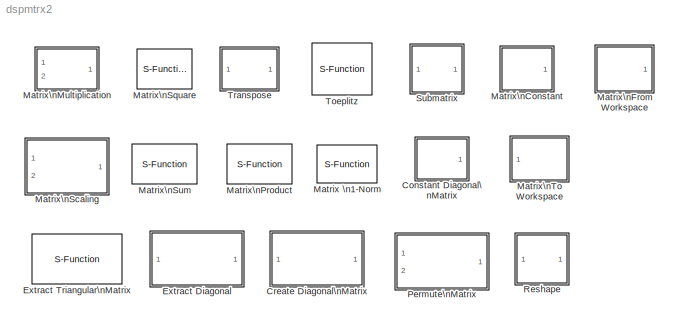
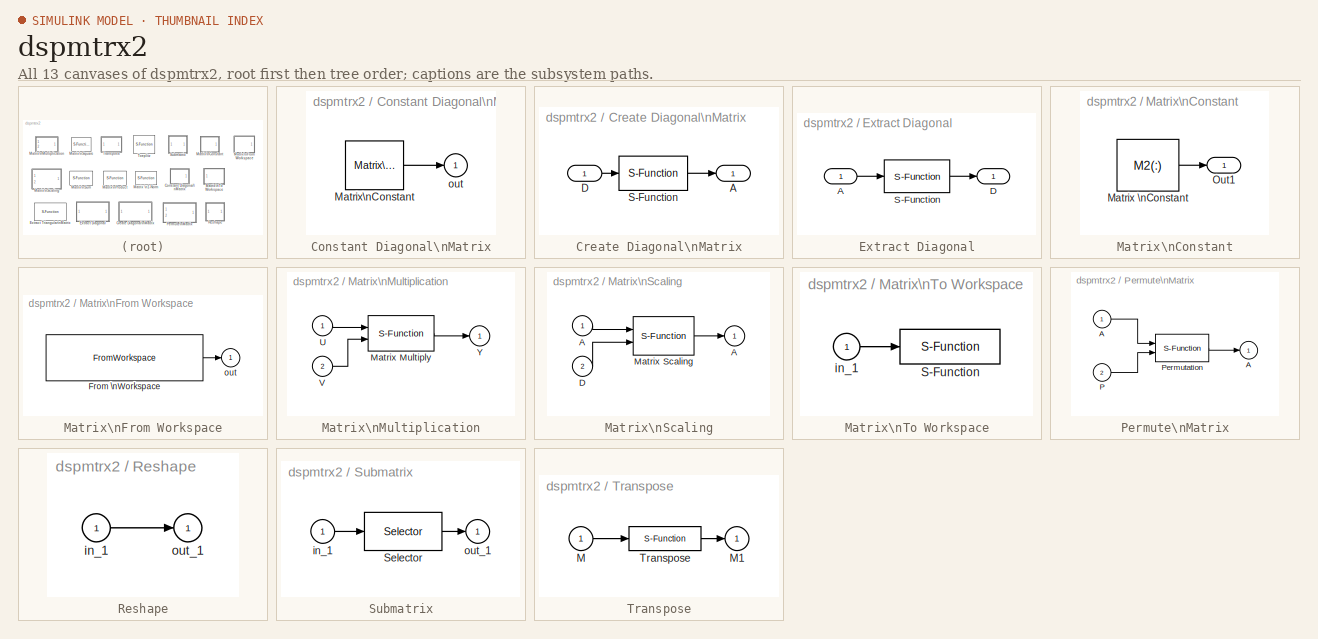
[diagram: thumbnail index - all 13 canvases of the model, root first then tree order]
MODEL dspmtrx2
KIND library
BLOCK [SubSystem] Constant Diagonal\nMatrix
  MaskCallbackString = |
  MaskDescription = Generate a full, diagonal matrix having elements specified by a vector\nconstant.  For a scalar constant, all diagonal elements will be identical.  To generate a diagonal scaling vector, use a constant block.\n
  MaskDisplay = plot(x,y)
  MaskEnableString = on,on
  MaskHelp = web(dspbhelp);
  MaskIconFrame = on
  MaskIconOpaque = on
  MaskIconRotate = none
  MaskIconUnits = autoscale
  MaskInitialization = [a,x,y] = dspblkdiag(n,q);
  MaskPromptString = Number of rows in matrix:|Constant(s) along diagonal:
  MaskStyleString = edit,edit
  MaskTunableValueString = off,on
  MaskType = Constant Diagonal Matrix
  MaskValueString = 3|1
  MaskVariables = n=@1;q=@2;
  MaskVisibilityString = on,on
  Ports = [0, 1, 0, 0, 0]
  ShowPortLabels = off
BLOCK [Reference] Constant Diagonal\nMatrix/Matrix\nConstant  REF=dspmtrx2/Matrix\nConstant
  M = a
  Ports = [0, 1, 0, 0, 0]
  SourceBlock = dspmtrx2/Matrix\nConstant
  SourceType = Matrix Constant
BLOCK [Outport] Constant Diagonal\nMatrix/out
  InitialOutput = 0
  OutputWhenDisabled = held
  Port = 1
BLOCK [SubSystem] Create Diagonal\nMatrix
  MaskDescription = Convert a vector of diagonal elements to a full matrix.
  MaskDisplay = plot(x,y)
  MaskHelp = web(dspbhelp);
  MaskIconFrame = on
  MaskIconOpaque = off
  MaskIconRotate = none
  MaskIconUnits = normalized
  MaskInitialization = ncols = -1;\nmode = 1;\nx = [.58 .87 .87 .58 .58 NaN 0.45 0.12 NaN 0.525 0.525 0.475 0.475 0.525 0.525 0.565 0.525 ];\ny = [ 0.2 0.2 0.8 0.8 0.2 NaN 0.2 0.8 NaN 0.435 0.475 0.475 0.525 0.525 0.565 0.5 0.435 ];
  MaskType = Create Diagonal Matrix
  Ports = [1, 1, 0, 0, 0]
  ShowPortLabels = on
BLOCK [Outport] Create Diagonal\nMatrix/A
  InitialOutput = []
  OutputWhenDisabled = held
  Port = 1
BLOCK [Inport] Create Diagonal\nMatrix/D
  DataType = auto
  Interpolate = on
  Port = 1
  PortWidth = -1
  SampleTime = -1
  SignalType = auto
BLOCK [S-Function] Create Diagonal\nMatrix/S-Function
  FunctionName = sdspdiag
  Parameters = ncols,mode
  PortCounts = []
  Ports = [1, 1, 0, 0, 0]
  SFunctionModules = ''
BLOCK [SubSystem] Extract Diagonal
  MaskDescription = Extract the main diagonal of a full matrix.
  MaskDisplay = plot(x,y)
  MaskEnableString = on
  MaskHelp = web(dspbhelp);
  MaskIconFrame = on
  MaskIconOpaque = off
  MaskIconRotate = none
  MaskIconUnits = normalized
  MaskInitialization = mode = 2;\nx = [.58 .87 NaN 0.12 0.45 0.45 0.12 0.12 NaN 0.525 0.525 0.475 0.475 0.525 0.525 0.565 0.525 ];\ny = [ 0.8 0.2 NaN 0.2 0.2 0.8 0.8 0.2 NaN 0.435 0.475 0.475 0.525 0.525 0.565 0.5 0.435 ];
  MaskPromptString = Number of columns in A (-1 for square):
  MaskStyleString = edit
  MaskTunableValueString = off
  MaskType = Extract Diagonal
  MaskValueString = -1
  MaskVariables = ncols=@1;
  MaskVisibilityString = on
  Ports = [1, 1, 0, 0, 0]
  ShowPortLabels = on
BLOCK [Inport] Extract Diagonal/A
  DataType = auto
  Interpolate = on
  Port = 1
  PortWidth = -1
  SampleTime = -1
  SignalType = auto
BLOCK [Outport] Extract Diagonal/D
  InitialOutput = []
  OutputWhenDisabled = held
  Port = 1
BLOCK [S-Function] Extract Diagonal/S-Function
  FunctionName = sdspdiag
  Parameters = ncols,mode
  PortCounts = []
  Ports = [1, 1, 0, 0, 0]
  SFunctionModules = ''
BLOCK [S-Function] Extract Triangular\nMatrix
  FunctionName = sdsptri
  MaskCallbackString = |
  MaskDescription = Extract upper or lower triangular part of input matrix.
  MaskDisplay = plot(x,y);\nport_label('input',1,'A');\nport_label('output',1,s);\n
  MaskEnableString = on,on
  MaskHelp = web(dspbhelp);
  MaskIconFrame = on
  MaskIconOpaque = on
  MaskIconRotate = none
  MaskIconUnits = normalized
  MaskInitialization = [s,x,y] = dspblktri(fcn);
  MaskPromptString = Extract:|Number of columns in A:
  MaskStyleString = popup(Upper|Lower),edit
  MaskTunableValueString = on,off
  MaskType = Extract Triangular Matrix
  MaskValueString = Upper|5
  MaskVariables = fcn=@1;ncols=@2;
  MaskVisibilityString = on,on
  Parameters = ncols,fcn
  PortCounts = []
  Ports = [1, 1, 0, 0, 0]
  SFunctionModules = ''
BLOCK [S-Function] Matrix \n1-Norm
  FunctionName = sdspm1norm
  MaskDescription = Compute the matrix 1-norm, which is the largest column sum of absolute values.
  MaskDisplay = disp('Matrix\\n1-Norm')
  MaskEnableString = on
  MaskHelp = web(dspbhelp);
  MaskIconFrame = on
  MaskIconOpaque = on
  MaskIconRotate = none
  MaskIconUnits = autoscale
  MaskPromptString = Number of columns in input (-1 for square):
  MaskStyleString = edit
  MaskTunableValueString = on
  MaskType = Matrix 1-Norm
  MaskValueString = -1
  MaskVariables = Cols=@1;
  MaskVisibilityString = on
  Parameters = Cols
  PortCounts = []
  Ports = [1, 1, 0, 0, 0]
  SFunctionModules = ''
BLOCK [SubSystem] Matrix\nConstant
  MaskDescription = Generate a constant matrix.
  MaskDisplay = plot(0,0,100,100,\n[20 10 10 20],[90 90 10 10],[84 96 96 84],[90 90 10 10]);\ndisp(s);\n
  MaskEnableString = on
  MaskHelp = web(dspbhelp);
  MaskIconFrame = on
  MaskIconOpaque = on
  MaskIconRotate = none
  MaskIconUnits = autoscale
  MaskInitialization = M2=M; s=size(M2);\nif length(s)>2,\n  s2=prod(s(2:end));\n  M2=reshape(M2,s(1),s2);\n  s=[s(1) s2];\nend\ns=sprintf('%dx%d',s(1),s(2));\n
  MaskPromptString = Matrix:
  MaskStyleString = edit
  MaskTunableValueString = on
  MaskType = Matrix Constant
  MaskValueString = rand(3,3)
  MaskVariables = M=@1;
  MaskVisibilityString = on
  Ports = [0, 1, 0, 0, 0]
  ShowPortLabels = on
BLOCK [Constant] Matrix\nConstant/Matrix \nConstant
  Value = M2(:)
BLOCK [Outport] Matrix\nConstant/Out1
  InitialOutput = 0
  OutputWhenDisabled = held
  Port = 1
BLOCK [SubSystem] Matrix\nFrom Workspace
  MaskCallbackString = |
  MaskDescription = Interpolate workspace array of time and matrix input values.
  MaskDisplay = plot(0,0,100,100,\n[20 10 10 20],[90 90 10 10],[84 96 96 84],[90 90 10 10]);\ndisp(dispstr);
  MaskEnableString = on,on
  MaskHelp = web(dspbhelp);
  MaskIconFrame = on
  MaskIconOpaque = on
  MaskIconRotate = none
  MaskIconUnits = autoscale
  MaskInitialization = [M,N,P]=size(U);\ndispstr=sprintf('%dx%dx%d',M,N,P);\ns.time=[]; s.signals.values=reshape(U,M*N,P).';\n
  MaskPromptString = 3-D array (3rd dim spans time):|Sample Time
  MaskStyleString = edit,edit
  MaskTunableValueString = off,off
  MaskType = Matrix From Workspace
  MaskValueString = rand(3,3,5)|1
  MaskVariables = U=@1;Ts=@2;
  MaskVisibilityString = on,on
  Ports = [0, 1, 0, 0, 0]
  ShowPortLabels = on
BLOCK [FromWorkspace] Matrix\nFrom Workspace/From \nWorkspace
  HoldFinalValue = off
  Interpolate = off
  SampleTime = Ts
  VariableName = s
BLOCK [Outport] Matrix\nFrom Workspace/out
  InitialOutput = 0
  OutputWhenDisabled = held
  Port = 1
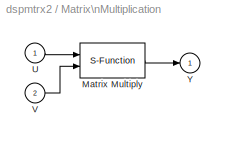
BLOCK [SubSystem] Matrix\nMultiplication
  MaskCallbackString = |
  MaskDescription = Multiply two matrices.
  MaskDisplay = disp(' U * V')
  MaskEnableString = on,on
  MaskHelp = web(dspbhelp);
  MaskIconFrame = on
  MaskIconOpaque = off
  MaskIconRotate = none
  MaskIconUnits = autoscale
  MaskPromptString = Size of U, [rows cols]:|Number of columns in V:
  MaskStyleString = edit,edit
  MaskTunableValueString = off,off
  MaskType = Matrix Multiplication
  MaskValueString = [2 2]|2
  MaskVariables = Asize=@1;Bcols=@2;
  MaskVisibilityString = on,on
  Ports = [2, 1, 0, 0, 0]
  ShowPortLabels = on
BLOCK [S-Function] Matrix\nMultiplication/Matrix Multiply
  FunctionName = sdspmmult
  Parameters = Asize,Bcols
  PortCounts = []
  Ports = [2, 1, 0, 0, 0]
  SFunctionModules = ''
BLOCK [Inport] Matrix\nMultiplication/U
  DataType = auto
  Interpolate = on
  Port = 1
  PortWidth = -1
  SampleTime = -1
  SignalType = auto
BLOCK [Inport] Matrix\nMultiplication/V
  DataType = auto
  Interpolate = on
  Port = 2
  PortWidth = -1
  SampleTime = -1
  SignalType = auto
BLOCK [Outport] Matrix\nMultiplication/Y
  InitialOutput = 0
  OutputWhenDisabled = held
  Port = 1
BLOCK [S-Function] Matrix\nProduct
  FunctionName = sdspmprod
  MaskCallbackString = |
  MaskDescription = Product of matrix elements along the row or column dimension.
  MaskDisplay = disp(str);
  MaskEnableString = on,on
  MaskHelp = web(dspbhelp);
  MaskIconFrame = on
  MaskIconOpaque = on
  MaskIconRotate = none
  MaskIconUnits = autoscale
  MaskInitialization = if (Dim==1), str='Row\\nProduct';\nelse str='Column\\nProduct';\nend\n
  MaskPromptString = Multiply along:|Number of columns in input:
  MaskStyleString = popup(Rows|Columns),edit
  MaskTunableValueString = off,off
  MaskType = Matrix Product
  MaskValueString = Columns|3
  MaskVariables = Dim=@1;Cols=@2;
  MaskVisibilityString = on,on
  Parameters = Cols,Dim
  PortCounts = []
  Ports = [1, 1, 0, 0, 0]
  SFunctionModules = ''
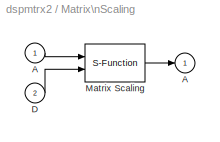
BLOCK [SubSystem] Matrix\nScaling
  MaskCallbackString = |
  MaskDescription = Scale the columns or rows of a matrix A by the elements of a vector D.  This is equivalent to multiplying a full matrix (A) by a diagonal (D), and vice-versa.
  MaskDisplay = disp(s);
  MaskEnableString = on,on
  MaskHelp = web(dspbhelp);
  MaskIconFrame = on
  MaskIconOpaque = off
  MaskIconRotate = none
  MaskIconUnits = normalized
  MaskInitialization = if mode==1, s='Scale\\nRows'; else s='Scale\\nColumns'; end
  MaskPromptString = Mode:|Number of columns in A:
  MaskStyleString = popup(Scale Rows (D*A)|Scale Columns (A*D)),edit
  MaskTunableValueString = on,on
  MaskType = Matrix Scaling
  MaskValueString = Scale Rows (D*A)|1
  MaskVariables = mode=@1;cols=@2;
  MaskVisibilityString = on,on
  Ports = [2, 1, 0, 0, 0]
  ShowPortLabels = on
BLOCK [Outport] Matrix\nScaling/ A
  InitialOutput = 0
  OutputWhenDisabled = held
  Port = 1
BLOCK [Inport] Matrix\nScaling/A
  DataType = auto
  Interpolate = on
  Port = 1
  PortWidth = -1
  SampleTime = -1
  SignalType = auto
BLOCK [Inport] Matrix\nScaling/D
  DataType = auto
  Interpolate = on
  Port = 2
  PortWidth = -1
  SampleTime = -1
  SignalType = auto
BLOCK [S-Function] Matrix\nScaling/Matrix Scaling
  FunctionName = sdspdmult
  Parameters = mode,cols
  PortCounts = []
  Ports = [2, 1, 0, 0, 0]
  SFunctionModules = ''
BLOCK [S-Function] Matrix\nSquare
  FunctionName = sdspmsqr
  MaskDescription = Compute the matrix square, U' * U.  May be used with row and column input vectors to compute efficient outer and inner products.  Hermitian transpose is performed for complex inputs.
  MaskDisplay = disp('U'' * U')
  MaskEnableString = on
  MaskHelp = web(dspbhelp);
  MaskIconFrame = on
  MaskIconOpaque = on
  MaskIconRotate = none
  MaskIconUnits = autoscale
  MaskPromptString = Number of columns in input:
  MaskStyleString = edit
  MaskTunableValueString = off
  MaskType = Matrix Square
  MaskValueString = 3
  MaskVariables = Acols=@1;
  MaskVisibilityString = on
  Parameters = Acols
  PortCounts = []
  Ports = [1, 1, 0, 0, 0]
  SFunctionModules = ''
BLOCK [S-Function] Matrix\nSum
  FunctionName = sdspmsum
  MaskCallbackString = |
  MaskDescription = Sum of matrix elements along the row or column dimension.
  MaskDisplay = disp(str);
  MaskEnableString = on,on
  MaskHelp = web(dspbhelp);
  MaskIconFrame = on
  MaskIconOpaque = on
  MaskIconRotate = none
  MaskIconUnits = autoscale
  MaskInitialization = if (Dim==1), str='Row\\nSum';\nelse str='Column\\nSum';\nend\n
  MaskPromptString = Sum along:|Number of columns in input:
  MaskStyleString = popup(Rows|Columns),edit
  MaskTunableValueString = off,off
  MaskType = Matrix Sum
  MaskValueString = Columns|3
  MaskVariables = Dim=@1;Cols=@2;
  MaskVisibilityString = on,on
  Parameters = Cols,Dim
  PortCounts = []
  Ports = [1, 1, 0, 0, 0]
  SFunctionModules = ''
BLOCK [SubSystem] Matrix\nTo Workspace
  MaskCallbackString = |||
  MaskDescription = Write a matrix signal into the workspace, storing the resulting time-sequence as a 3-D array with time running along the third dimension.
  MaskDisplay = disp(matname)
  MaskEnableString = on,on,on,on
  MaskHelp = web(dspbhelp);
  MaskIconFrame = on
  MaskIconOpaque = on
  MaskIconRotate = none
  MaskIconUnits = autoscale
  MaskInitialization = \n
  MaskPromptString = Array name:|Maximum number of matrices:|Decimation factor:|Matrix size:
  MaskStyleString = edit,edit,edit,edit
  MaskTunableValueString = off,off,off,off
  MaskType = Matrix To Workspace
  MaskValueString = yout|1000|1|[3 3]
  MaskVariables = matname=&1;maxrows=@2;deci=@3;matsiz=@4;
  MaskVisibilityString = on,on,on,on
  Ports = [1, 0, 0, 0, 0]
  ShowPortLabels = on
BLOCK [S-Function] Matrix\nTo Workspace/S-Function
  FunctionName = sdspmtwks
  Parameters = matname,maxrows,deci,matsiz
  PortCounts = []
  Ports = [1, 0, 0, 0, 0]
  SFunctionModules = ''
BLOCK [Inport] Matrix\nTo Workspace/in_1
  DataType = auto
  Interpolate = on
  Port = 1
  PortWidth = -1
  SampleTime = -1
  SignalType = auto
BLOCK [SubSystem] Permute\nMatrix
  MaskCallbackString = ||
  MaskDescription = Permute the rows or columns of a matrix or vector A, based on a vector P of integer-valued permutation indices.
  MaskDisplay = disp(['Permute\\n' &1])
  MaskEnableString = on,on,on
  MaskHelp = web(dspbhelp);
  MaskIconFrame = on
  MaskIconOpaque = off
  MaskIconRotate = none
  MaskIconUnits = normalized
  MaskPromptString = Permute:|Invalid Permutation Index:|Number of columns in A:
  MaskStyleString = popup(Rows|Columns),popup(Clip Index|Clip and Warn|Generate Error),edit
  MaskTunableValueString = on,on,off
  MaskType = Permute Matrix
  MaskValueString = Columns|Clip Index|1
  MaskVariables = mode=@1;errmode=@2;cols=@3;
  MaskVisibilityString = on,on,on
  Ports = [2, 1, 0, 0, 0]
  ShowPortLabels = on
BLOCK [Outport] Permute\nMatrix/ A
  InitialOutput = 0
  OutputWhenDisabled = held
  Port = 1
BLOCK [Inport] Permute\nMatrix/A
  DataType = auto
  Interpolate = on
  Port = 1
  PortWidth = -1
  SampleTime = -1
  SignalType = auto
BLOCK [Inport] Permute\nMatrix/P
  DataType = auto
  Interpolate = on
  Port = 2
  PortWidth = -1
  SampleTime = -1
  SignalType = auto
BLOCK [S-Function] Permute\nMatrix/Permutation
  FunctionName = sdspperm
  Parameters = mode,errmode,cols
  PortCounts = []
  Ports = [2, 1, 0, 0, 0]
  SFunctionModules = ''
BLOCK [SubSystem] Reshape
  MaskDescription = Reshape a vector or matrix to have size M-by-N.  Output a new matrix whose elements are taken columnwise from the input.  An error results if the input does not have M*N elements.
  MaskDisplay = plot(0,0,100,100,\n[20 10 10 20],[90 90 10 10],\n[84 96 96 84],[90 90 10 10]);\ndisp(s);\n
  MaskEnableString = on
  MaskHelp = web(dspbhelp);
  MaskIconFrame = on
  MaskIconOpaque = on
  MaskIconRotate = none
  MaskIconUnits = autoscale
  MaskInitialization = if ~exist('Asiz') | ~isequal(size(Asiz), [1 2]),\n  s = '? ? ?';\n  error('Matrix size must be a 2 element row vector');\nelse\n  s=sprintf('%dx%d', Asiz);\nend\n
  MaskPromptString = New matrix size:
  MaskStyleString = edit
  MaskTunableValueString = off
  MaskType = Reshape
  MaskValueString = [2 2]
  MaskVariables = Asiz=@1;
  MaskVisibilityString = on
  Ports = [1, 1, 0, 0, 0]
  ShowPortLabels = off
BLOCK [Inport] Reshape/in_1
  DataType = auto
  Interpolate = on
  Port = 1
  PortWidth = -1
  SampleTime = -1
  SignalType = auto
BLOCK [Outport] Reshape/out_1
  InitialOutput = 0
  OutputWhenDisabled = held
  Port = 1
BLOCK [SubSystem] Submatrix
  MaskCallbackString = |
  MaskDescription = Return a selected portion of a matrix signal.  The submatrix is specified by a cell-array containing a comma-separated MATLAB indexing expression, expr, such that y=u(expr{:}).  (The \"end\" keyword and lone colon operators are not supported.)
  MaskDisplay = plot(x1,y1,xc,yc,xi,yi);
  MaskEnableString = on,on
  MaskHelp = web(dspbhelp);
  MaskIconFrame = on
  MaskIconOpaque = on
  MaskIconRotate = none
  MaskIconUnits = normalized
  MaskInitialization = x1=[.2 .1 .1 .2 NaN .825 .925 .925 .825];\ny1=[.9 .9 .1 .1 NaN .9 .9 .1 .1];\nS=8; t=(0:S)'/S*2*pi; a=0.05;\nx=a*cos(t);y=a*sin(t);\nxc=x*ones(1,9) + ones(size(t))*[.3 .3 .3 .5 .5 .5 .7 .7 .7];\nyc=y*ones(1,9) + ones(size(t))*[.25 .5 .75 .25 .5 .75 .25 .5 .75];\nxi=[.4 .8 .8 .4 .4]; yi=[.375 .375 .875 .875 .375];\nnele=prod(siz); idx=reshape(1:nele,siz);\nidx=idx(expr{:}); idx=idx(:);\n
  MaskPromptString = Input matrix size, [rows cols]:|Index expression (cell-array):
  MaskStyleString = edit,edit
  MaskTunableValueString = off,off
  MaskType = Submatrix
  MaskValueString = [3 3]|{1:2, 2:3}
  MaskVariables = siz=@1;expr=@2;
  MaskVisibilityString = on,on
  Ports = [1, 1, 0, 0, 0]
  ShowPortLabels = on
BLOCK [Selector] Submatrix/Selector
  Elements = idx
  InputPortWidth = nele
BLOCK [Inport] Submatrix/in_1
  DataType = auto
  Interpolate = on
  Port = 1
  PortWidth = -1
  SampleTime = -1
  SignalType = auto
BLOCK [Outport] Submatrix/out_1
  InitialOutput = 0
  OutputWhenDisabled = held
  Port = 1
BLOCK [S-Function] Toeplitz
  FunctionName = sdspmtoep
  MaskDescription = Generate a Toeplitz matrix having input Col as its first column and Row as its first row.  If Symmetric is checked, a symmetric (or Hermitian) Toeplitz matrix is generated with Row as its first row.\n
  MaskDisplay = plot(xm,ym);\nport_label('input', p1, L1);\nport_label('input', p2, L2);\n
  MaskEnableString = on
  MaskHelp = web(dspbhelp);
  MaskIconFrame = on
  MaskIconOpaque = on
  MaskIconRotate = none
  MaskIconUnits = normalized
  MaskInitialization = if (Symmetric==1)\n  p1 = 1; L1 = 'Row';\n  p2 = 1;  L2 = 'Row';\nelse\n  p1 = 1;  L1 = 'Col';\n  p2 = 2;  L2 = 'Row';\nend\n\nxm=.25 +.8*[0.25 0.1625 0.1625 0.25 NaN 0.7875 0.8875 0.8875 0.7875 NaN 0.25 0.75 NaN 0.4125 0.75 NaN 0.5875 0.75 NaN 0.25 0.5875 NaN 0.25 0.4125];\nym=[.9 .9 .1 .1 NaN .9 .9 .1 .1 NaN .8 .2 NaN .8 .4 NaN .8 .6 NaN .6 .2 NaN .4 .2];\n
  MaskPromptString = Symmetric
  MaskSelfModifiable = on
  MaskStyleString = checkbox
  MaskTunableValueString = off
  MaskType = Toeplitz
  MaskValueString = on
  MaskVariables = Symmetric=@1;
  MaskVisibilityString = on
  Parameters = Symmetric
  PortCounts = []
  Ports = [1, 1, 0, 0, 0]
  SFunctionModules = ''
BLOCK [SubSystem] Transpose
  MaskCallbackString = |
  MaskDescription = Compute the matrix transpose.
  MaskDisplay = disp(str)
  MaskEnableString = on,on
  MaskHelp = web(dspbhelp);
  MaskIconFrame = on
  MaskIconOpaque = on
  MaskIconRotate = none
  MaskIconUnits = autoscale
  MaskInitialization = if(Hermitian==1),  str = ' U ''';\nelse,                    str = ' U.''';\nend
  MaskPromptString = Number of columns in input:|Hermitian
  MaskStyleString = edit,checkbox
  MaskTunableValueString = off,on
  MaskType = Transpose
  MaskValueString = 3|off
  MaskVariables = Asize=@1;Hermitian=@2;
  MaskVisibilityString = on,on
  Ports = [1, 1, 0, 0, 0]
  ShowPortLabels = off
BLOCK [Inport] Transpose/M
  DataType = auto
  Interpolate = on
  Port = 1
  PortWidth = -1
  SampleTime = -1
  SignalType = auto
BLOCK [Outport] Transpose/M1
  InitialOutput = 0
  OutputWhenDisabled = held
  Port = 1
BLOCK [S-Function] Transpose/Transpose
  FunctionName = sdspmtrnsp
  Parameters = Asize, Hermitian
  PortCounts = []
  Ports = [1, 1, 0, 0, 0]
  SFunctionModules = ''
LINE Constant Diagonal\nMatrix/Matrix\nConstant:1 -> Constant Diagonal\nMatrix/out:1
LINE Create Diagonal\nMatrix/D:1 -> Create Diagonal\nMatrix/S-Function:1
LINE Create Diagonal\nMatrix/S-Function:1 -> Create Diagonal\nMatrix/A:1
LINE Extract Diagonal/A:1 -> Extract Diagonal/S-Function:1
LINE Extract Diagonal/S-Function:1 -> Extract Diagonal/D:1
LINE Matrix\nConstant/Matrix \nConstant:1 -> Matrix\nConstant/Out1:1
LINE Matrix\nFrom Workspace/From \nWorkspace:1 -> Matrix\nFrom Workspace/out:1
LINE Matrix\nMultiplication/Matrix Multiply:1 -> Matrix\nMultiplication/Y:1
LINE Matrix\nMultiplication/U:1 -> Matrix\nMultiplication/Matrix Multiply:1
LINE Matrix\nMultiplication/V:1 -> Matrix\nMultiplication/Matrix Multiply:2
LINE Matrix\nScaling/A:1 -> Matrix\nScaling/Matrix Scaling:1
LINE Matrix\nScaling/D:1 -> Matrix\nScaling/Matrix Scaling:2
LINE Matrix\nScaling/Matrix Scaling:1 -> Matrix\nScaling/ A:1
LINE Matrix\nTo Workspace/in_1:1 -> Matrix\nTo Workspace/S-Function:1
LINE Permute\nMatrix/A:1 -> Permute\nMatrix/Permutation:1
LINE Permute\nMatrix/P:1 -> Permute\nMatrix/Permutation:2
LINE Permute\nMatrix/Permutation:1 -> Permute\nMatrix/ A:1
LINE Reshape/in_1:1 -> Reshape/out_1:1
LINE Submatrix/Selector:1 -> Submatrix/out_1:1
LINE Submatrix/in_1:1 -> Submatrix/Selector:1
LINE Transpose/M:1 -> Transpose/Transpose:1
LINE Transpose/Transpose:1 -> Transpose/M1:1
